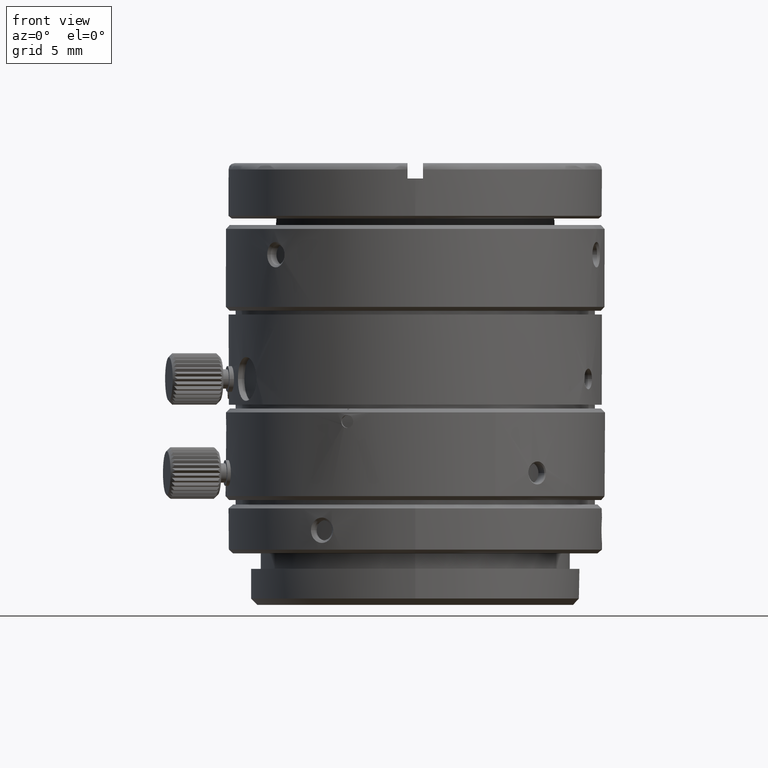
[diagram: clean part render]
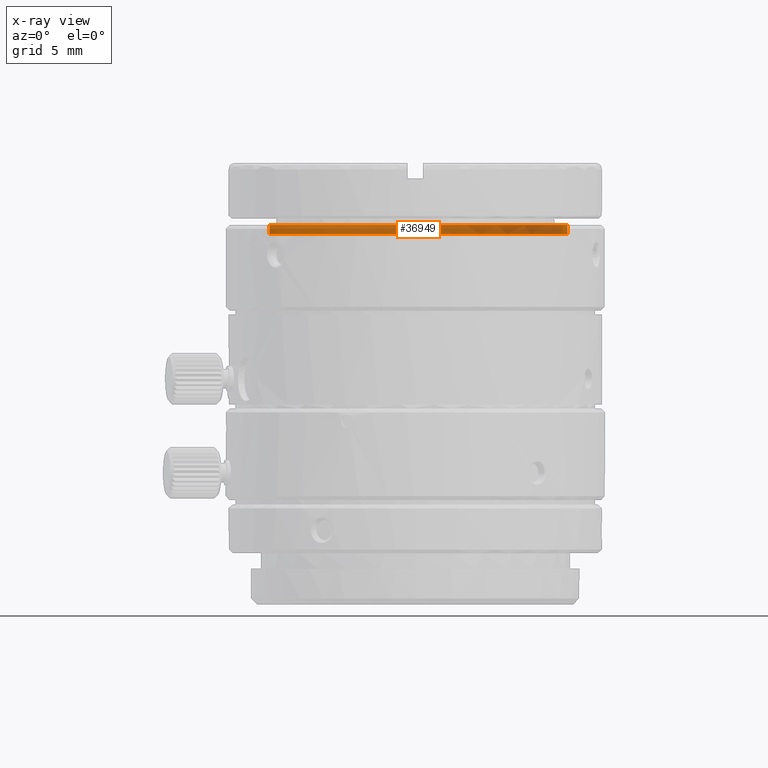
[diagram: x-ray — body ghosted, one internal face saturated and labeled with its STEP entity id]
A machine part, front view, then the same camera in x-ray: the body is ghosted and one INTERNAL B-rep face — a face not visible from any outside direction — is saturated and labeled: STEP entity #36949.
In plain terms, the highlighted face is a freeform B-spline surface patch.
Its self-contained STEP definition (entity closure, byte-faithful):
#852 = CARTESIAN_POINT ( 'NONE',  ( 11.31320408392518040, -3.526175455069234577, 22.53932818799999893 ) ) ;
#1933 = CARTESIAN_POINT ( 'NONE',  ( -8.604450258558191678, 8.184824218221445236, 23.23932818800000177 ) ) ;
#2136 = CARTESIAN_POINT ( 'NONE',  ( -4.817278862622047519, 10.85457214128187431, 23.23932818800000177 ) ) ;
#2556 = CARTESIAN_POINT ( 'NONE',  ( 8.728174244165550988, 8.052756434251524098, 23.23932818800000533 ) ) ;
#2768 = CARTESIAN_POINT ( 'NONE',  ( -11.08167211584841638, 4.269011016152256310, 23.23932818800000533 ) ) ;
#3024 = CARTESIAN_POINT ( 'NONE',  ( -11.31320408644646136, 3.526175449359246095, 22.53932818799999893 ) ) ;
#4298 = CARTESIAN_POINT ( 'NONE',  ( -11.31320408885703976, 3.526175451650834791, 23.23932818800000177 ) ) ;
#5308 = CARTESIAN_POINT ( 'NONE',  ( -4.099649175685535774, 11.14543801718089888, 23.23932818799999822 ) ) ;
#5514 = CARTESIAN_POINT ( 'NONE',  ( 11.58580906019535384, 2.607094215134793558, 23.23932818800000888 ) ) ;
#6007 = CARTESIAN_POINT ( 'NONE',  ( 13.37878984298201246, 3.100946066176034410, 22.53932818799999893 ) ) ;
#6188 = CARTESIAN_POINT ( 'NONE',  ( -3.100946068920071852, 13.37878984234599322, 22.53932818799999893 ) ) ;
#6397 = VERTEX_POINT ( 'NONE', #9293 ) ;
#6722 =( BOUNDED_CURVE ( )  B_SPLINE_CURVE ( 3, ( #18160, #18785, #25288, #33920, #8739, #6007, #31590 ),
 .UNSPECIFIED., .F., .T. ) 
 B_SPLINE_CURVE_WITH_KNOTS ( ( 4, 3, 4 ),
 ( -9.122634189586070974, -7.551837862791175304, -5.981041535996279634 ),
 .UNSPECIFIED. ) 
 CURVE ( )  GEOMETRIC_REPRESENTATION_ITEM ( )  RATIONAL_B_SPLINE_CURVE ( ( 1.000000000000000000, 0.8047378540760217192, 0.8047378540760217192, 1.000000000000000000, 0.8047378540760217192, 0.8047378540760217192, 1.000000000000000000 ) ) 
 REPRESENTATION_ITEM ( '' )  );
#8293 = ORIENTED_EDGE ( 'NONE', *, *, #29525, .T. ) ;
#8407 = CARTESIAN_POINT ( 'NONE',  ( 13.37878984298201246, 3.100946066176036187, 23.23932818799999822 ) ) ;
#8458 = CARTESIAN_POINT ( 'NONE',  ( 8.184824218221438130, 8.604450258558195230, 23.23932818800000177 ) ) ;
#8739 = CARTESIAN_POINT ( 'NONE',  ( 10.15329697227932115, 9.247618329100466994, 22.53932818799999893 ) ) ;
#8754 = EDGE_CURVE ( 'NONE', #20751, #17141, #30900, .T. ) ;
#8877 = CARTESIAN_POINT ( 'NONE',  ( -6.195242649817411795, 10.13147968070020255, 23.23932818800000177 ) ) ;
#9082 = CARTESIAN_POINT ( 'NONE',  ( -0.2967204085583326489, 11.87180984009061113, 23.23932818800000533 ) ) ;
#9293 = CARTESIAN_POINT ( 'NONE',  ( 11.31320408392518040, -3.526175455069234577, 22.53932818799999893 ) ) ;
#10576 = CARTESIAN_POINT ( 'NONE',  ( -11.31320408510057973, 3.526175451298164898, 22.53932818799999893 ) ) ;
#10750 = FACE_OUTER_BOUND ( 'NONE', #16428, .T. ) ;
#11154 = CARTESIAN_POINT ( 'NONE',  ( -3.100946068920071852, 13.37878984234599322, 23.23932818799999822 ) ) ;
#11803 = CARTESIAN_POINT ( 'NONE',  ( 6.348910151382588296, 10.03589815703329791, 23.23932818800000177 ) ) ;
#13287 = CARTESIAN_POINT ( 'NONE',  ( -11.31320408885703976, 3.526175451650834791, 23.23932818800000177 ) ) ;
#14752 = CARTESIAN_POINT ( 'NONE',  ( 0.4775924942637273518, 11.86590986864072406, 23.23932818800000177 ) ) ;
#14958 = CARTESIAN_POINT ( 'NONE',  ( -10.77990450365360076, 4.982125082540853178, 23.23932818800000177 ) ) ;
#15034 = B_SPLINE_CURVE_WITH_KNOTS ( 'NONE', 1,
 ( #26723, #10576 ),
 .UNSPECIFIED., .F., .F.,
 ( 2, 2 ),
 ( -1.000000000000000000, 0.0000000000000000000 ),
 .UNSPECIFIED. ) ;
#15372 = ORIENTED_EDGE ( 'NONE', *, *, #24040, .T. ) ;
#15373 = CARTESIAN_POINT ( 'NONE',  ( 9.706200101276943215, 6.842338164143294321, 23.23932818800000533 ) ) ;
#16428 = EDGE_LOOP ( 'NONE', ( #25644, #22694, #8293, #15372 ) ) ;
#17141 = VERTEX_POINT ( 'NONE', #33024 ) ;
#17250 = CARTESIAN_POINT ( 'NONE',  ( -9.247618331182943407, 10.15329697038259837, 23.23932818799999822 ) ) ;
#18040 = CARTESIAN_POINT ( 'NONE',  ( -11.31320408644646136, 3.526175449359246095, 23.23932818800000177 ) ) ;
#18160 = CARTESIAN_POINT ( 'NONE',  ( -11.31320408510057973, 3.526175451298164898, 22.53932818799999893 ) ) ;
#18500 = CARTESIAN_POINT ( 'NONE',  ( 6.989449971556383367, 9.600807285676665970, 23.23932818800000177 ) ) ;
#18713 = CARTESIAN_POINT ( 'NONE',  ( 10.85457214128187964, 4.817278862622038638, 23.23932818799999467 ) ) ;
#18785 = CARTESIAN_POINT ( 'NONE',  ( -9.247618331182939855, 10.15329697038260193, 22.53932818799999893 ) ) ;
#20429 = EDGE_CURVE ( 'NONE', #6397, #17141, #38734, .T. ) ;
#20751 = VERTEX_POINT ( 'NONE', #13287 ) ;
#21452 = CARTESIAN_POINT ( 'NONE',  ( -9.600807285676669522, 6.989449971556377150, 23.23932818800000177 ) ) ;
#22126 = CARTESIAN_POINT ( 'NONE',  ( 10.15329697227931582, 9.247618329100466994, 22.53932818799999893 ) ) ;
#22694 = ORIENTED_EDGE ( 'NONE', *, *, #8754, .F. ) ;
#23741 = CARTESIAN_POINT ( 'NONE',  ( 10.15329697227931582, 9.247618329100466994, 23.23932818799999822 ) ) ;
#24040 = EDGE_CURVE ( 'NONE', #26730, #6397, #6722, .T. ) ;
#24386 = CARTESIAN_POINT ( 'NONE',  ( -2.607094215134793558, 11.58580906019535561, 23.23932818800001243 ) ) ;
#25263 = CARTESIAN_POINT ( 'NONE',  ( 11.31320408500000063, -3.526175453999999654, 22.53932818799999893 ) ) ;
#25288 = CARTESIAN_POINT ( 'NONE',  ( -3.100946068920067411, 13.37878984234599677, 22.53932818799999893 ) ) ;
#25644 = ORIENTED_EDGE ( 'NONE', *, *, #20429, .T. ) ;
#26723 = CARTESIAN_POINT ( 'NONE',  ( -11.31320408885703976, 3.526175451650834791, 23.23932818800000177 ) ) ;
#26730 = VERTEX_POINT ( 'NONE', #27423 ) ;
#27339 = CARTESIAN_POINT ( 'NONE',  ( -1.846508468671684389, 11.73108340243974368, 23.23932818800000533 ) ) ;
#27423 = CARTESIAN_POINT ( 'NONE',  ( -11.31320408510057973, 3.526175451298164898, 22.53932818799999893 ) ) ;
#27536 = CARTESIAN_POINT ( 'NONE',  ( 11.54473607150802295, -2.783339896315782269, 23.23932818800000177 ) ) ;
#27743 = CARTESIAN_POINT ( 'NONE',  ( -6.842338164143298762, 9.706200101276943215, 23.23932818800001243 ) ) ;
#27953 = CARTESIAN_POINT ( 'NONE',  ( 2.025056191938077621, 11.70158362206648661, 23.23932818800000177 ) ) ;
#28160 = CARTESIAN_POINT ( 'NONE',  ( 11.86590986864071873, -0.4775924942637393422, 23.23932818799999467 ) ) ;
#29525 = EDGE_CURVE ( 'NONE', #20751, #26730, #15034, .T. ) ;
#30010 = CARTESIAN_POINT ( 'NONE',  ( 11.31320408768166175, -3.526175455421904914, 23.23932818800000177 ) ) ;
#30897 = CARTESIAN_POINT ( 'NONE',  ( 11.14543801718090066, 4.099649175685541103, 23.23932818800000533 ) ) ;
#30900 = B_SPLINE_CURVE_WITH_KNOTS ( 'NONE', 3,
 ( #4298, #2768, #14958, #40132, #21452, #1933, #34048, #27743, #8877, #2136, #5308, #24386, #27339, #9082, #14752, #27953, #31109, #36989, #40752, #11803, #18500, #8458, #2556, #15373, #34254, #18713, #30897, #5514, #34462, #31517, #28160, #40338, #27536, #40965 ),
 .UNSPECIFIED., .F., .F.,
 ( 4, 2, 2, 2, 2, 2, 2, 2, 2, 2, 2, 2, 2, 2, 2, 2, 4 ),
 ( 0.0000000000000000000, 0.1963495408493619587, 0.3926990816987239175, 0.5890486225480858762, 0.7853981633974478349, 0.9817477042468096826, 1.178097245096171752, 1.374446785945533822, 1.570796326794895670, 1.767145867644257740, 1.963495408493620031, 2.159844949342982545, 2.356194490192345281, 2.552544031041707573, 2.748893571891070309, 2.945243112740433045, 3.141592653589795336 ),
 .UNSPECIFIED. ) ;
#31109 = CARTESIAN_POINT ( 'NONE',  ( 2.783339896315768947, 11.54473607150802827, 23.23932818799999822 ) ) ;
#31517 = CARTESIAN_POINT ( 'NONE',  ( 11.87180984009060758, 0.2967204085583257656, 23.23932818800000177 ) ) ;
#31590 = CARTESIAN_POINT ( 'NONE',  ( 11.31320408392518040, -3.526175455069234577, 22.53932818799999893 ) ) ;
#31774 = CARTESIAN_POINT ( 'NONE',  ( -9.247618331182943407, 10.15329697038259837, 22.53932818799999893 ) ) ;
#33024 = CARTESIAN_POINT ( 'NONE',  ( 11.31320408768166175, -3.526175455421904914, 23.23932818800000177 ) ) ;
#33800 =( BOUNDED_SURFACE ( )  B_SPLINE_SURFACE ( 1, 3, ( 
 ( #25263, #38071, #22126, #34926, #6188, #31774, #3024 ),
 ( #39884, #8407, #23741, #36549, #11154, #17250, #18040 ) ),
 .UNSPECIFIED., .F., .F., .T. ) 
 B_SPLINE_SURFACE_WITH_KNOTS ( ( 2, 2 ),
 ( 4, 3, 4 ),
 ( 0.0000000000000000000, 1.000000000000000000 ),
 ( 0.0000000000000000000, 0.5000000000000000000, 1.000000000000000000 ),
 .UNSPECIFIED. ) 
 GEOMETRIC_REPRESENTATION_ITEM ( )  RATIONAL_B_SPLINE_SURFACE ( (
 ( 1.000000000000000000, 0.8047378540760217192, 0.8047378540760217192, 1.000000000000000000, 0.8047378540760217192, 0.8047378540760217192, 1.000000000000000000),
 ( 1.000000000000000000, 0.8047378540760217192, 0.8047378540760217192, 1.000000000000000000, 0.8047378540760217192, 0.8047378540760217192, 1.000000000000000000) ) ) 
 REPRESENTATION_ITEM ( '' )  SURFACE ( )  );
#33920 = CARTESIAN_POINT ( 'NONE',  ( 3.526175451679625539, 11.31320408572323011, 22.53932818799999893 ) ) ;
#34048 = CARTESIAN_POINT ( 'NONE',  ( -8.052756434251518769, 8.728174244165552764, 23.23932818800000533 ) ) ;
#34254 = CARTESIAN_POINT ( 'NONE',  ( 10.13147968070019900, 6.195242649817423342, 23.23932818800000533 ) ) ;
#34462 = CARTESIAN_POINT ( 'NONE',  ( 11.73108340243974190, 1.846508468671693715, 23.23932818800000177 ) ) ;
#34926 = CARTESIAN_POINT ( 'NONE',  ( 3.526175451679622874, 11.31320408572323011, 22.53932818799999893 ) ) ;
#36549 = CARTESIAN_POINT ( 'NONE',  ( 3.526175451679622874, 11.31320408572323011, 23.23932818800000177 ) ) ;
#36949 = ADVANCED_FACE ( 'NONE', ( #10750 ), #33800, .T. ) ;
#36989 = CARTESIAN_POINT ( 'NONE',  ( 4.269011016152257199, 11.08167211584842171, 23.23932818800000533 ) ) ;
#38071 = CARTESIAN_POINT ( 'NONE',  ( 13.37878984298201246, 3.100946066176036187, 22.53932818799999893 ) ) ;
#38734 = B_SPLINE_CURVE_WITH_KNOTS ( 'NONE', 1,
 ( #852, #30010 ),
 .UNSPECIFIED., .F., .F.,
 ( 2, 2 ),
 ( -1.000000000000000000, 0.0000000000000000000 ),
 .UNSPECIFIED. ) ;
#39884 = CARTESIAN_POINT ( 'NONE',  ( 11.31320408500000063, -3.526175453999999654, 23.23932818800000177 ) ) ;
#40132 = CARTESIAN_POINT ( 'NONE',  ( -10.03589815703330146, 6.348910151382578526, 23.23932818799999822 ) ) ;
#40338 = CARTESIAN_POINT ( 'NONE',  ( 11.70158362206648484, -2.025056191938065187, 23.23932818799999822 ) ) ;
#40752 = CARTESIAN_POINT ( 'NONE',  ( 4.982125082540846073, 10.77990450365360786, 23.23932818800000177 ) ) ;
#40965 = CARTESIAN_POINT ( 'NONE',  ( 11.31320408768166175, -3.526175455421904914, 23.23932818800000177 ) ) ;